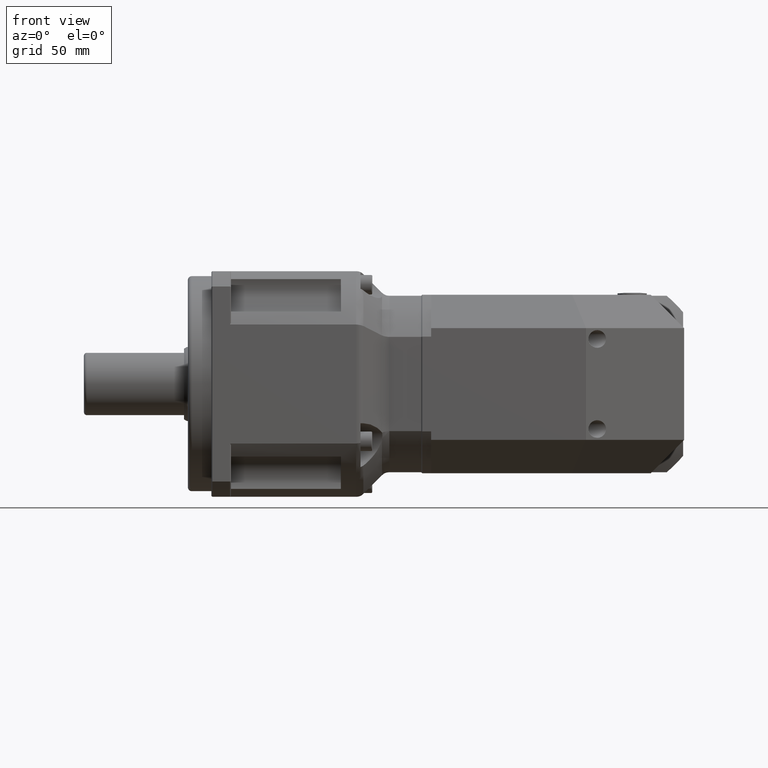
[diagram: clean part render]
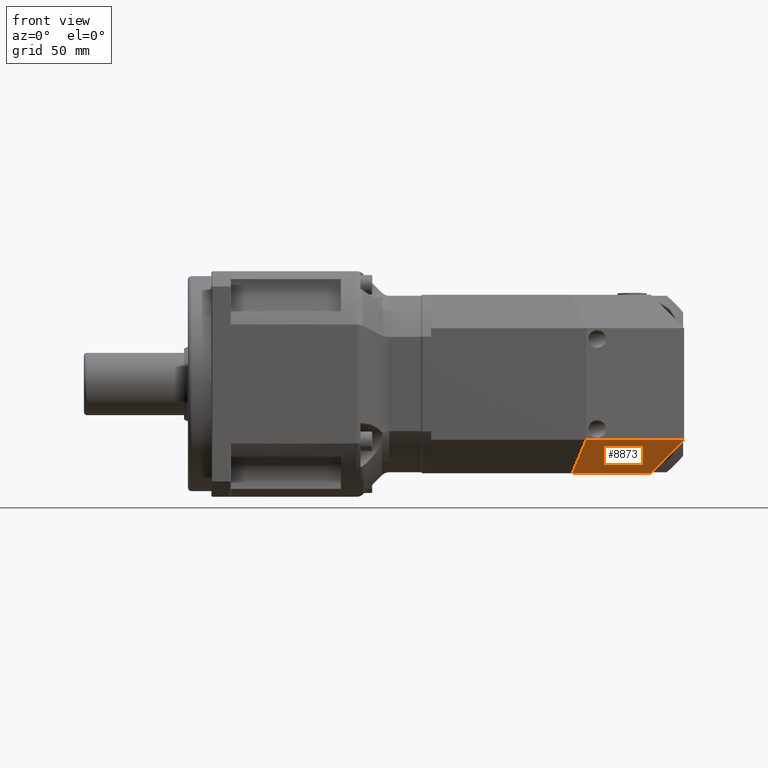
[diagram: same view with one face highlighted and labeled with its STEP entity id]
A machine part, front view. The second image highlights one B-rep face of the part: STEP entity #8873.
In plain terms, the highlighted planar face has unit normal (0.5, -0.5, -0.7071).
Its self-contained STEP definition (entity closure, byte-faithful):
#548=LINE('',#15200,#1011);
#565=LINE('',#15237,#1028);
#566=LINE('',#15240,#1029);
#567=LINE('',#15241,#1030);
#1011=VECTOR('',#11578,70.7106781186548);
#1028=VECTOR('',#11615,25.0516378895343);
#1029=VECTOR('',#11618,56.6274169979695);
#1030=VECTOR('',#11619,25.0516378895343);
#2515=FACE_OUTER_BOUND('',#3242,.T.);
#3242=EDGE_LOOP('',(#7291,#7292,#7293,#7294));
#4472=VERTEX_POINT('',#15132);
#4498=VERTEX_POINT('',#15199);
#4508=VERTEX_POINT('',#15235);
#4509=VERTEX_POINT('',#15239);
#5497=EDGE_CURVE('',#4498,#4472,#548,.T.);
#5517=EDGE_CURVE('',#4472,#4508,#565,.T.);
#5518=EDGE_CURVE('',#4508,#4509,#566,.T.);
#5519=EDGE_CURVE('',#4498,#4509,#567,.T.);
#7291=ORIENTED_EDGE('',*,*,#5497,.T.);
#7292=ORIENTED_EDGE('',*,*,#5517,.T.);
#7293=ORIENTED_EDGE('',*,*,#5518,.T.);
#7294=ORIENTED_EDGE('',*,*,#5519,.F.);
#8398=PLANE('',#9753);
#8873=ADVANCED_FACE('',(#2515),#8398,.T.);
#9753=AXIS2_PLACEMENT_3D('',#15238,#11616,#11617);
#11578=DIRECTION('',(-0.707106781186547,-0.707106781186548,-6.63871873512035E-16));
#11615=DIRECTION('',(-0.281084637714819,0.678598344545848,-0.678598344545847));
#11616=DIRECTION('center_axis',(0.500000000000001,-0.5,-0.707106781186547));
#11617=DIRECTION('ref_axis',(0.816496580927726,3.5527136788005E-16,0.577350269189626));
#11618=DIRECTION('',(0.707106781186547,0.707106781186548,6.63871873512035E-16));
#11619=DIRECTION('',(-0.678598344545848,0.281084637714819,-0.678598344545847));
#15132=CARTESIAN_POINT('',(71.6854365143615,-9.43917799761841,49.875721489125));
#15199=CARTESIAN_POINT('',(121.685436514361,40.5608220023816,49.8757214891251));
#15200=CARTESIAN_POINT('',(63.1854365143615,-17.9391779976184,49.875721489125));
#15235=CARTESIAN_POINT('',(64.6438059540189,7.5608220023816,32.875721489125));
#15237=CARTESIAN_POINT('',(71.6854365143615,-9.43917799761841,49.875721489125));
#15238=CARTESIAN_POINT('Origin',(57.1750288742758,-11.9287703575328,41.375721489125));
#15239=CARTESIAN_POINT('',(104.685436514361,47.6024525627242,32.8757214891251));
#15240=CARTESIAN_POINT('',(51.1646212341902,-5.91836271744712,32.875721489125));
#15241=CARTESIAN_POINT('',(121.685436514361,40.5608220023816,49.8757214891251));